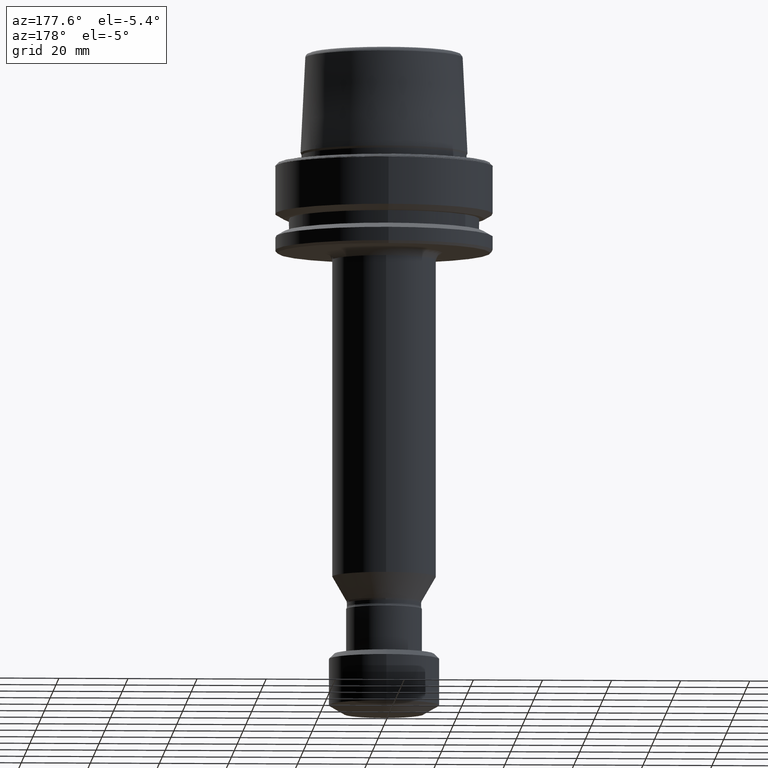
[diagram: clean part render]
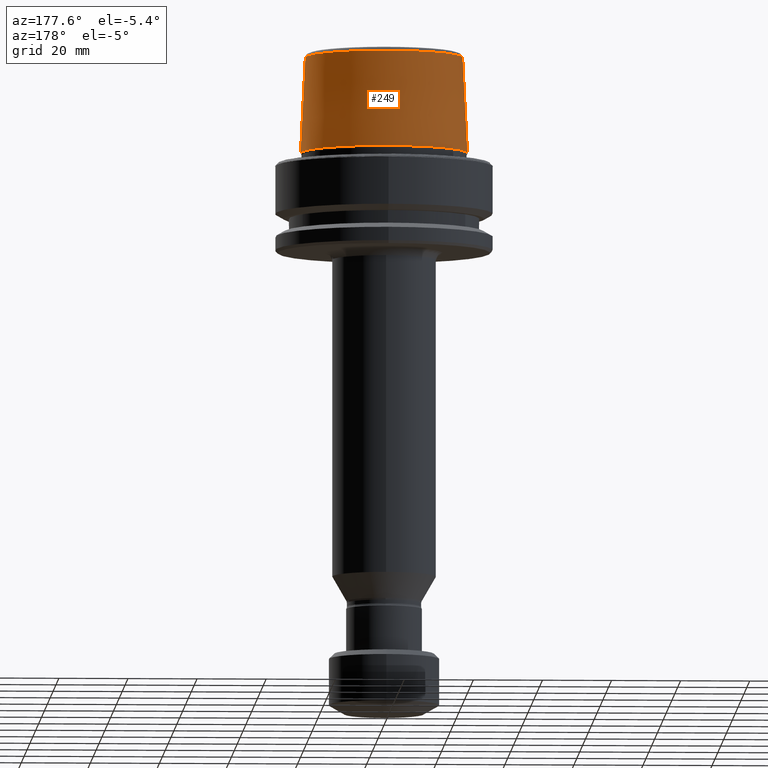
[diagram: same view with one face highlighted and labeled with its STEP entity id]
A machine part, auxiliary view. The second image highlights one B-rep face of the part: STEP entity #249.
In plain terms, the highlighted conical surface has half-angle 2.868 deg.
Its self-contained STEP definition (entity closure, byte-faithful):
#122 = EDGE_LOOP ( 'NONE', ( #859, #725, #638, #1706 ) ) ;
#127 = CARTESIAN_POINT ( 'NONE',  ( 0.0000000000000000000, 0.0000000000000000000, 30.76004333299997700 ) ) ;
#138 = DIRECTION ( 'NONE',  ( -0.0000000000000000000, -0.0000000000000000000, 1.000000000000000000 ) ) ;
#158 = DIRECTION ( 'NONE',  ( -1.000000000000000000, 8.881784197001252300E-016, 9.138308107476618100E-016 ) ) ;
#249 = ADVANCED_FACE ( 'NONE', ( #496 ), #1487, .T. ) ;
#301 = AXIS2_PLACEMENT_3D ( 'NONE', #127, #138, #158 ) ;
#348 = VECTOR ( 'NONE', #515, 1000.000000000000100 ) ;
#468 = CARTESIAN_POINT ( 'NONE',  ( 24.17032625100000200, 2.960011267763439600E-015, 3.000000000000002700 ) ) ;
#496 = FACE_OUTER_BOUND ( 'NONE', #122, .T. ) ;
#515 = DIRECTION ( 'NONE',  ( -0.05003611050185009100, 0.0000000000000000000, -0.9987474093312315200 ) ) ;
#568 = CARTESIAN_POINT ( 'NONE',  ( 22.77957961860916200, -5.606603855993833900E-009, 30.76004333281712300 ) ) ;
#579 = VERTEX_POINT ( 'NONE', #1219 ) ;
#638 = ORIENTED_EDGE ( 'NONE', *, *, #802, .T. ) ;
#683 = AXIS2_PLACEMENT_3D ( 'NONE', #2536, #2573, #1828 ) ;
#725 = ORIENTED_EDGE ( 'NONE', *, *, #959, .T. ) ;
#754 = DIRECTION ( 'NONE',  ( 0.05003611050185009100, 6.127656256787398800E-018, -0.9987474093312315200 ) ) ;
#790 = CARTESIAN_POINT ( 'NONE',  ( -22.77957961860916200, -8.181844432284903700E-010, 30.76004333281712300 ) ) ;
#802 = EDGE_CURVE ( 'NONE', #1581, #579, #1855, .T. ) ;
#859 = ORIENTED_EDGE ( 'NONE', *, *, #1113, .F. ) ;
#939 = EDGE_CURVE ( 'NONE', #1634, #579, #2556, .T. ) ;
#959 = EDGE_CURVE ( 'NONE', #1456, #1581, #2498, .T. ) ;
#1113 = EDGE_CURVE ( 'NONE', #1456, #1634, #1631, .T. ) ;
#1121 = DIRECTION ( 'NONE',  ( 0.0000000000000000000, 0.0000000000000000000, 1.000000000000000000 ) ) ;
#1219 = CARTESIAN_POINT ( 'NONE',  ( -24.17032625100000200, 0.0000000000000000000, 3.000000000000002700 ) ) ;
#1437 = CARTESIAN_POINT ( 'NONE',  ( 22.77957961900000300, 2.789693926633063400E-015, 30.76004333299999500 ) ) ;
#1456 = VERTEX_POINT ( 'NONE', #568 ) ;
#1484 = AXIS2_PLACEMENT_3D ( 'NONE', #2311, #1121, #2499 ) ;
#1487 = CONICAL_SURFACE ( 'NONE', #683, 22.77957961900000300, 0.05005701256328789300 ) ;
#1581 = VERTEX_POINT ( 'NONE', #468 ) ;
#1631 = CIRCLE ( 'NONE', #301, 22.77957961900000300 ) ;
#1634 = VERTEX_POINT ( 'NONE', #790 ) ;
#1706 = ORIENTED_EDGE ( 'NONE', *, *, #939, .F. ) ;
#1823 = CARTESIAN_POINT ( 'NONE',  ( -22.77957961900000300, 0.0000000000000000000, 30.76004333299999500 ) ) ;
#1828 = DIRECTION ( 'NONE',  ( -1.000000000000000000, 0.0000000000000000000, 0.0000000000000000000 ) ) ;
#1855 = CIRCLE ( 'NONE', #1484, 24.17032625100000200 ) ;
#2015 = VECTOR ( 'NONE', #754, 1000.000000000000100 ) ;
#2311 = CARTESIAN_POINT ( 'NONE',  ( 0.0000000000000000000, 0.0000000000000000000, 3.000000000000002700 ) ) ;
#2498 = LINE ( 'NONE', #1437, #2015 ) ;
#2499 = DIRECTION ( 'NONE',  ( 1.000000000000000000, 0.0000000000000000000, -1.076561891198119100E-016 ) ) ;
#2536 = CARTESIAN_POINT ( 'NONE',  ( 0.0000000000000000000, 0.0000000000000000000, 30.76004333299999500 ) ) ;
#2556 = LINE ( 'NONE', #1823, #348 ) ;
#2573 = DIRECTION ( 'NONE',  ( 0.0000000000000000000, 0.0000000000000000000, -1.000000000000000000 ) ) ;